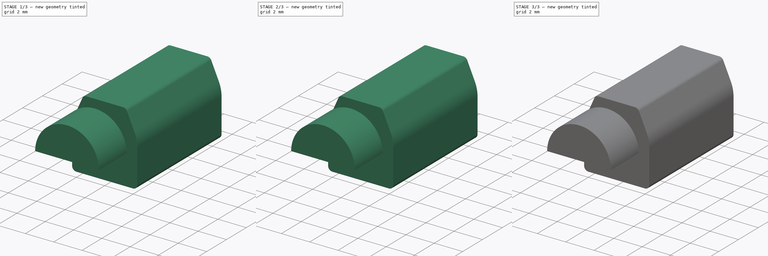
[diagram: build sequence overview — one tinted view per stage of 3, left to right]
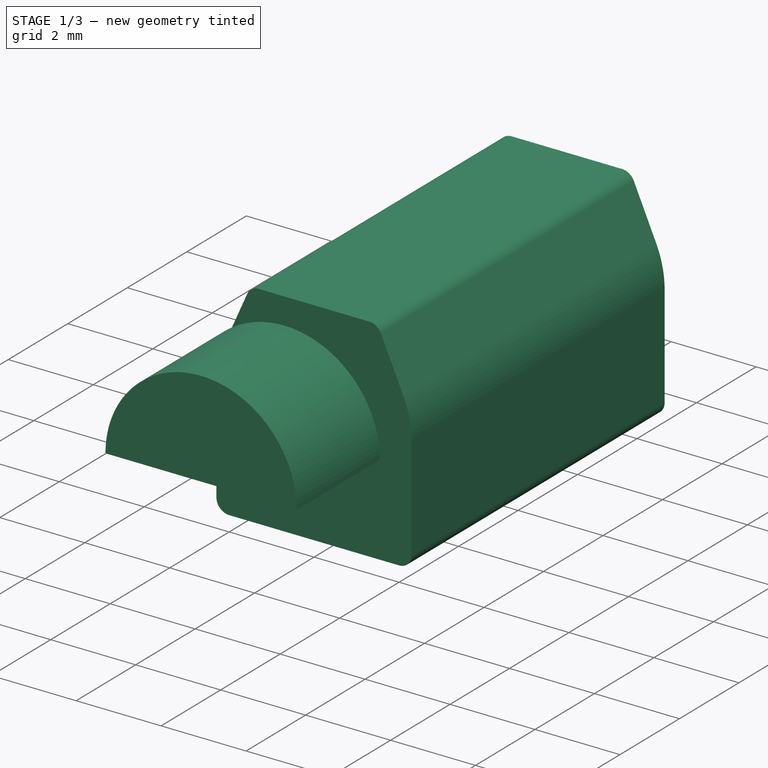
[diagram: stage 1 of 3 — iso view after this stage's code; geometry added in this stage tinted green]
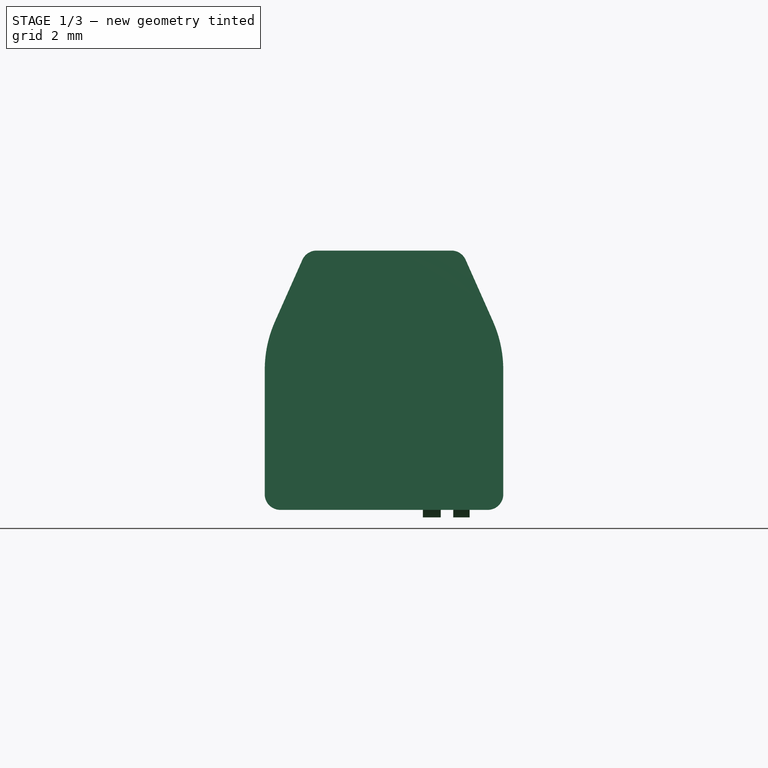
[diagram: stage 1 of 3 — front view after this stage's code; geometry added in this stage tinted green]
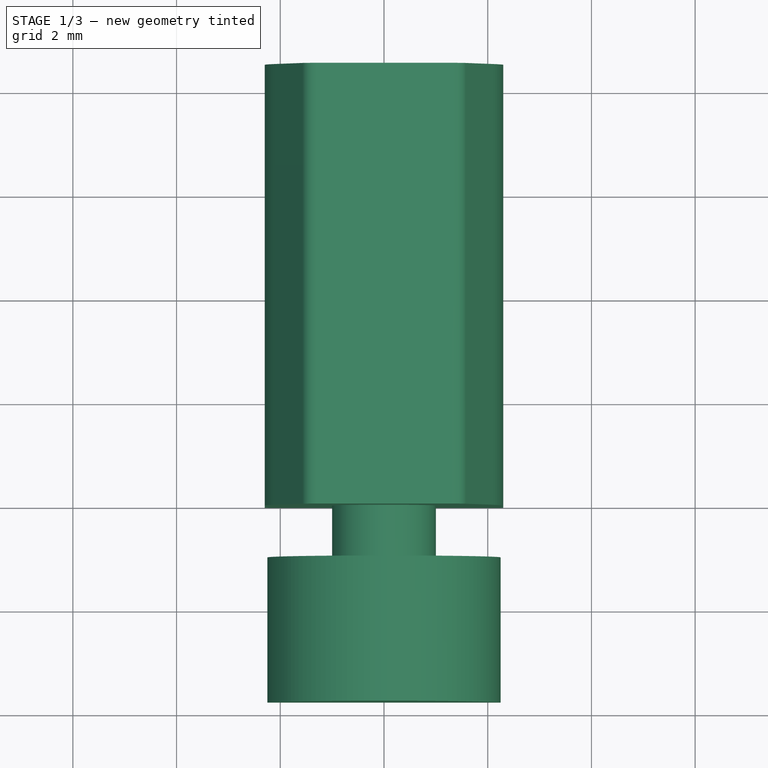
[diagram: stage 1 of 3 — top view after this stage's code; geometry added in this stage tinted green]
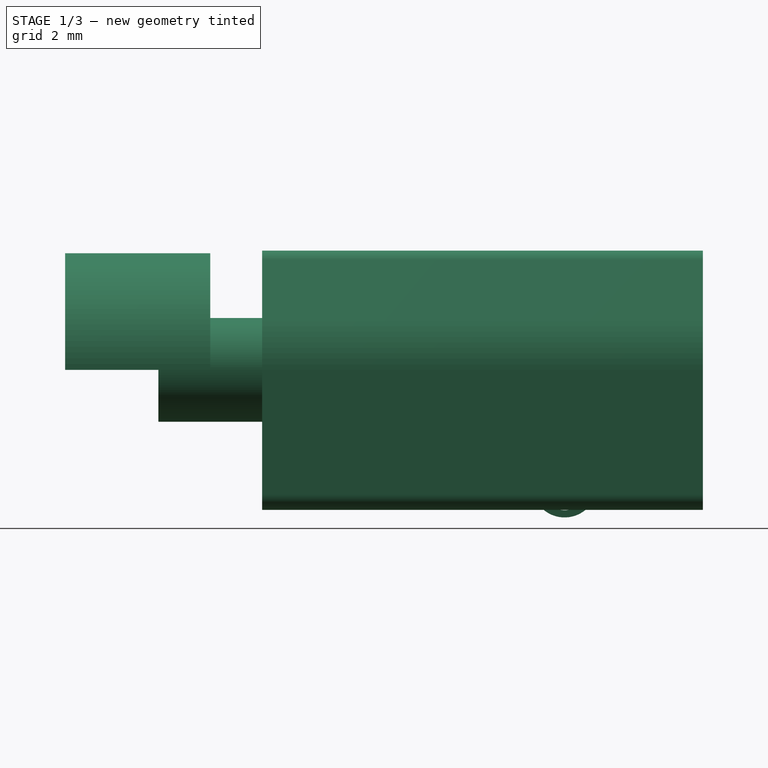
[diagram: stage 1 of 3 — right view after this stage's code; geometry added in this stage tinted green]
FCSTD DOCUMENT  (FreeCAD 0.19R22039 (Git))
Label: Z4TH7B2120042P_vibration_motor
License: All rights reserved
LicenseURL: http://en.wikipedia.org/wiki/All_rights_reserved
objects: Sketcher::SketchObject×6, PartDesign::Pad×4, Raytracing::RayFeature×4, Raytracing::LuxFeature×4, PartDesign::Body×3, Part::Feature×3, PartDesign::ShapeBinder×2, PartDesign::Pocket×2, App::Part×1, Part::Mirroring×1, Part::Compound×1, Raytracing::RayProject×1, Raytracing::LuxProject×1
note: 28 computed .brp shape members not serialized (recipe doc carries the construction recipe); baked Part::Feature solids carry a one-line shape summary decoded from their .brp

FEATURE [Sketcher::SketchObject] Sketch
  MapMode = 5
  Placement = pos=(0,0,0) rot=(1,0,0;1.5708rad)
  Support = -> [XZ_Plane001]
  sketch-geometry (12):
    g0: LineSegment StartX=-2.00001 StartY=5.33965e-11 StartZ=0 EndX=2 EndY=0 EndZ=0
    g1: ArcOfCircle CenterX=2 CenterY=0.3 CenterZ=0 NormalX=0 NormalY=0 NormalZ=1 AngleXU=0 Radius=0.3 StartAngle=4.71239 EndAngle=6.28319
    g2: LineSegment StartX=2.3 StartY=0.3 StartZ=0 EndX=2.3 EndY=2.7 EndZ=0
    g3: ArcOfCircle CenterX=8e-16 CenterY=2.7 CenterZ=0 NormalX=0 NormalY=0 NormalZ=1 AngleXU=0 Radius=2.3 StartAngle=0 EndAngle=0.418046
    g4: LineSegment StartX=2.10193 StartY=3.63374 StartZ=0 EndX=1.57417 EndY=4.82179 EndZ=0
    g5: ArcOfCircle CenterX=1.3 CenterY=4.7 CenterZ=0 NormalX=0 NormalY=0 NormalZ=1 AngleXU=0 Radius=0.3 StartAngle=0.418046 EndAngle=1.5708
    g6: LineSegment StartX=1.3 StartY=5 StartZ=0 EndX=-1.3 EndY=5 EndZ=0
    g7: ArcOfCircle CenterX=-1.3 CenterY=4.7 CenterZ=0 NormalX=0 NormalY=0 NormalZ=1 AngleXU=0 Radius=0.3 StartAngle=1.5708 EndAngle=2.72355
    g8: LineSegment StartX=-1.57417 StartY=4.82179 StartZ=0 EndX=-2.10193 EndY=3.63374 EndZ=0
    g9: ArcOfCircle CenterX=8e-16 CenterY=2.7 CenterZ=0 NormalX=0 NormalY=0 NormalZ=1 AngleXU=0 Radius=2.3 StartAngle=2.72355 EndAngle=3.14159
    g10: LineSegment StartX=-2.3 StartY=2.7 StartZ=0 EndX=-2.3 EndY=0.3 EndZ=0
    g11: ArcOfCircle CenterX=-2 CenterY=0.3 CenterZ=0 NormalX=0 NormalY=0 NormalZ=1 AngleXU=0 Radius=0.3 StartAngle=3.14159 EndAngle=4.71237
  constraints (36):
    c: PointOnObject(g0,g-1)
    c: PointOnObject(g0,g-1)
    c: Vertical(g2)
    c: Coincident(g11,g0)
    c: Coincident(g1,g0)
    c: DistanceY(g0,g5) = 5
    c: DistanceX(g10,g1) = 4.6
    c: Tangent(g5,g6) = -1.5708
    c: Tangent(g9,g10) = -1.5708
    c: Radius(g1) = 0.3
    c: Equal(g1,g11)
    c: Equal(g1,g7)
    c: Vertical(g10)
    c: Coincident(g2,g1)
    c: Coincident(g10,g11)
    c: DistanceX(g7,g5) = 2.6
    c: DistanceY(g-1,g3) = 2.7
    c: Coincident(g9,g3)
    c: Coincident(g8,g7)
    c: Coincident(g2,g3)
    c: Symmetric(g2,g9,g-2)
    c: Coincident(g4,g3)
    c: Coincident(g8,g9)
    c: Coincident(g7,g6)
    c: Coincident(g4,g5)
    c: Symmetric(g3,g8,g-2)
    c: Symmetric(g1,g11,g-2)
    c: Tangent(g4,g5) = -1.5708
    c: Tangent(g8,g9) = -1.5708
    c: Horizontal(g6)
    c: Symmetric(g7,g5,g-2)
    c: Tangent(g7,g8) = -1.5708
    c: Tangent(g6,g7) = -1.5708
    c: Tangent(g1,g2) = -1.5708
    c: Tangent(g0,g1) = -1.5708
    c: Tangent(g10,g11) = -1.5708
FEATURE [PartDesign::Pad] Pad
  Length = 8.5
  Length2 = 100
  Placement = pos=(0,0,0) rot=(1,0,0;1.5708rad)
  Profile = -> Sketch
  Reversed = true
  Type = 0
FEATURE [PartDesign::Body] Body001
  Group = -> [ShapeBinder,Sketch001,Pad001,Sketch002,Pad002]
  Origin = -> Origin002
  Tip = -> Pad002
FEATURE [Sketcher::SketchObject] Sketch003
  ExternalGeometry = -> [Pad]
  MapMode = 5
  Placement = pos=(0,0,2.66982e-11) rot=(1,0,0;3.14159rad)
  Support = -> [Pad]
  sketch-geometry (4):
    g0: LineSegment StartX=-1.9 StartY=-5 StartZ=0 EndX=1.9 EndY=-5 EndZ=0
    g1: LineSegment StartX=1.9 StartY=-5 StartZ=0 EndX=1.9 EndY=-8.1 EndZ=0
    g2: LineSegment StartX=1.9 StartY=-8.1 StartZ=0 EndX=-1.9 EndY=-8.1 EndZ=0
    g3: LineSegment StartX=-1.9 StartY=-8.1 StartZ=0 EndX=-1.9 EndY=-5 EndZ=0
  constraints (11):
    c: Coincident(g0,g1)
    c: Coincident(g1,g2)
    c: Coincident(g2,g3)
    c: Coincident(g3,g0)
    c: Horizontal(g2)
    c: Vertical(g1)
    c: Vertical(g3)
    c: Symmetric(g0,g0,g-2)
    c: DistanceX(g0,g-4) = 0.4
    c: DistanceY(g-6,g2) = 0.4
    c: DistanceY(g-6,g0) = 3.5
FEATURE [PartDesign::Pocket] Pocket
  BaseFeature = -> Pad
  Length = 1.5
  Length2 = 100
  Placement = pos=(0,0,0) rot=(1,0,0;1.5708rad)
  Profile = -> Sketch003
  Type = 0
FEATURE [Part::Feature] Pocket_cp
  Placement = pos=(0,0,0) rot=(1,0,0;1.5708rad)
  shape: bbox 4.6 x 8.5 x 5 mm, 19 faces (baked)
FEATURE [Part::Feature] Pad002_cp
  Placement = pos=(0,0,0) rot=(1,0,0;1.5708rad)
  shape: bbox 4.5 x 3.8 x 3.25 mm, 7 faces (baked)
FEATURE [Part::Feature] Pocket001_cp
  Placement = pos=(0,0,0) rot=(0.57735,0.57735,0.57735;2.0944rad)
  shape: bbox 0.9 x 2.366 x 1.407 mm, 15 faces (baked)
FEATURE [Part::Compound] Part_cp
  Links = -> [Pocket_cp,Pad002_cp,Pocket001_cp]
FEATURE [Raytracing::RayFeature] Part__Mirroring001_View
  Result = <blob: 35401 chars omitted>
  Source = -> Part__Mirroring001
  Transparency = 0
FEATURE [Raytracing::RayFeature] Body002_View
  Result = <blob: 34699 chars omitted>
  Source = -> Body002
  Transparency = 0
FEATURE [Raytracing::RayFeature] Body001_View
  Result = <blob: 15635 chars omitted>
  Source = -> Body001
  Transparency = 0
FEATURE [Raytracing::RayFeature] Body_View
  Result = <blob: 17780 chars omitted>
  Source = -> Body
  Transparency = 10
FEATURE [Raytracing::RayProject] PovProject
  Camera = // declares position and view direction\n\n// Generated by FreeCAD (http://www.freecadweb.org/)\n#declare cam_location =  <-16.9775,-10.8559,-1.28015>;\n#declare cam_look_at  = <1.14306,-0.762571,2.6228>;\n#declare cam_sky      = <0.153333,0.104685,-0.982614>;\n#declare cam_angle    = 45; \ncamera {\n  location  cam_location\n  look_at   cam_look_at\n  sky       cam_sky\n  angle     cam_angle \n  right x*1200/1080\n}
  Group = -> [Part__Mirroring001_View,Body002_View,Body001_View,Body_View]
  Template = <userpath>/Desktop/FreeCAD_0.19.22039_x64_LP_12.1.6_PY3QT5-WinVS2015/data/Mod/Raytracing/Templates/RadiosityNormal.pov
FEATURE [Raytracing::LuxFeature] Part__Mirroring001_View001
  Result = <blob: 24522 chars omitted>
  Source = -> Part__Mirroring001
  Transparency = 0
FEATURE [Raytracing::LuxFeature] Body002_View001
  Result = <blob: 24128 chars omitted>
  Source = -> Body002
  Transparency = 0
FEATURE [Raytracing::LuxFeature] Body001_View001
  Result = <blob: 10505 chars omitted>
  Source = -> Body001
  Transparency = 0
FEATURE [Raytracing::LuxFeature] Body_View001
  Result = <blob: 10223 chars omitted>
  Source = -> Body
  Transparency = 10
FEATURE [Raytracing::LuxProject] LuxProject
  Camera = # declares position and view direction\n# Generated by FreeCAD (http://www.freecadweb.org/)\nLookAt -16.9775 -1.28015 -10.8559 1.14306 2.6228 -0.762571 0.153333 -0.982614 0.104685
  Group = -> [Part__Mirroring001_View001,Body002_View001,Body001_View001,Body_View001]
  Template = <userpath>/Desktop/FreeCAD_0.19.22039_x64_LP_12.1.6_PY3QT5-WinVS2015/data/Mod/Raytracing/Templates/LuxClassic.lxs
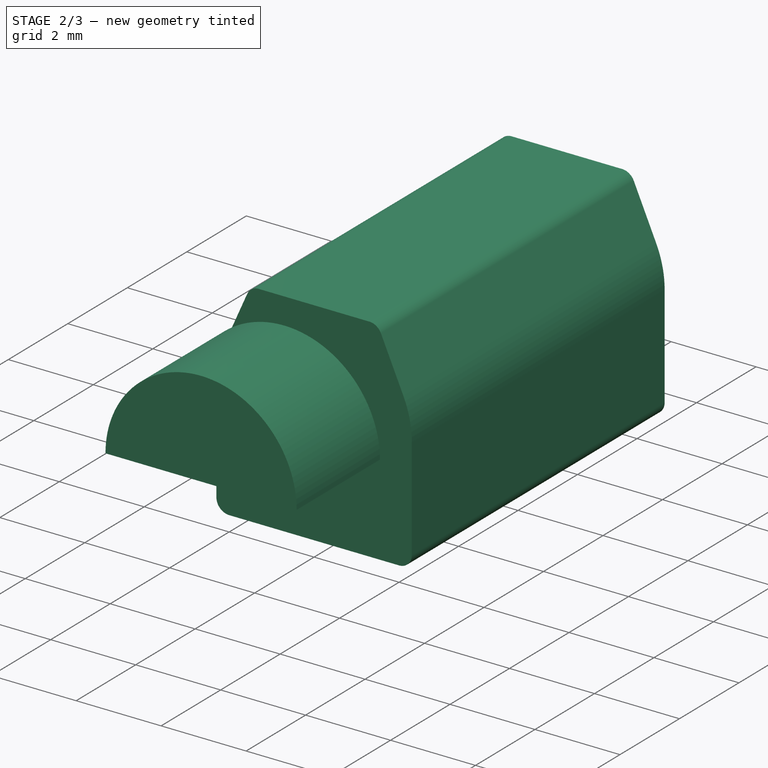
[diagram: stage 2 of 3 — iso view after this stage's code; geometry added in this stage tinted green]
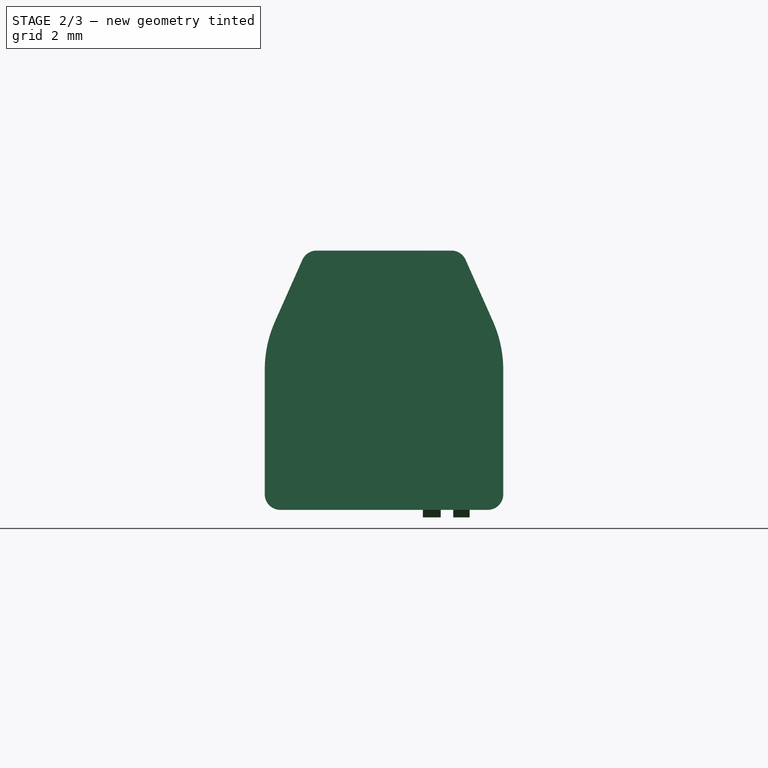
[diagram: stage 2 of 3 — front view after this stage's code; geometry added in this stage tinted green]
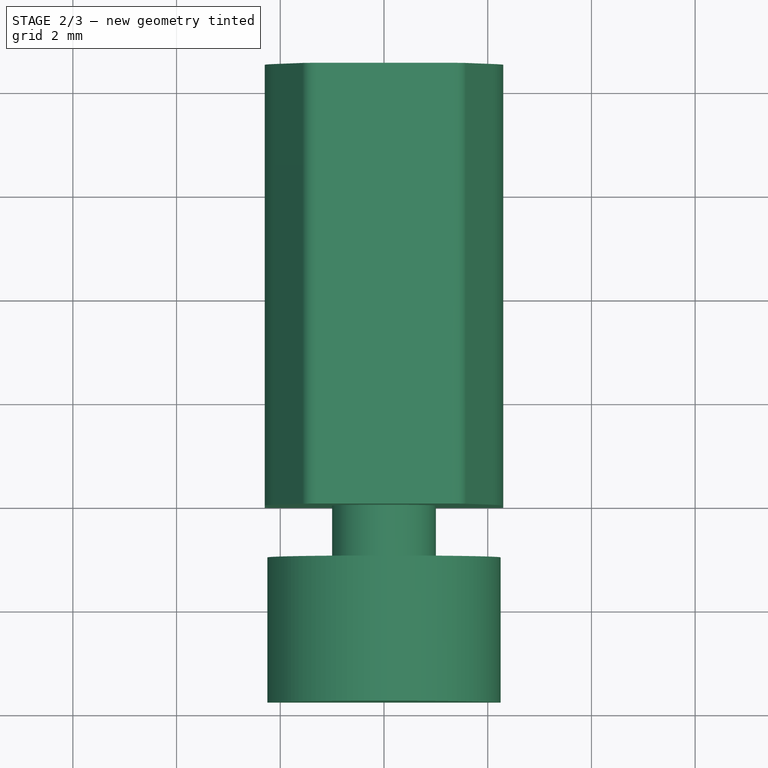
[diagram: stage 2 of 3 — top view after this stage's code; geometry added in this stage tinted green]
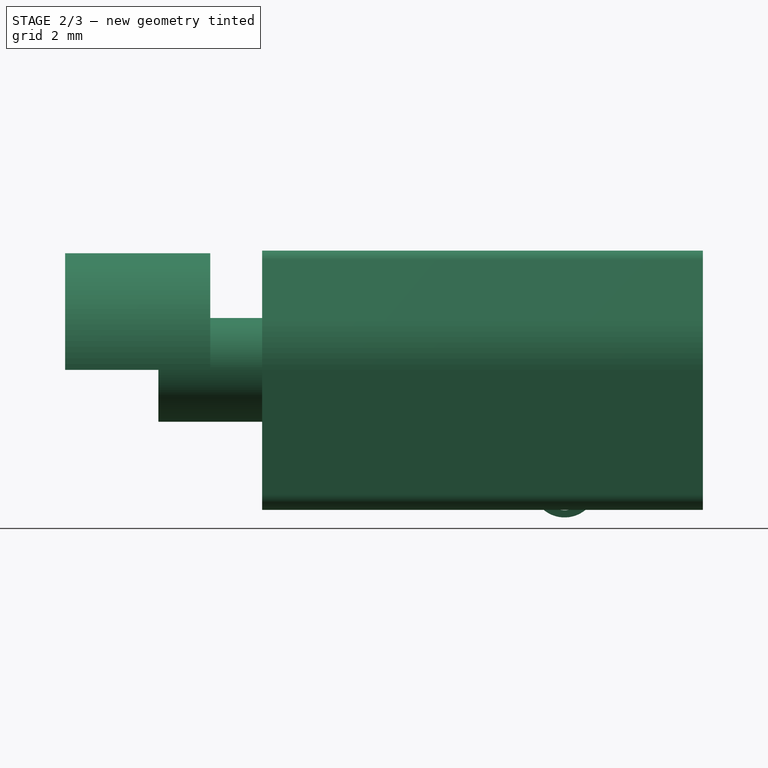
[diagram: stage 2 of 3 — right view after this stage's code; geometry added in this stage tinted green]
FEATURE [PartDesign::Body] Body
  Group = -> [Sketch,Pad,Sketch003,Pocket]
  Origin = -> Origin001
  Tip = -> Pocket
FEATURE [PartDesign::ShapeBinder] ShapeBinder001
  Support = -> [Pocket]
  TraceSupport = false
FEATURE [Sketcher::SketchObject] Sketch004
  AttachmentOffset = pos=(0,0,1.2) rot=(0,0,1;0rad)
  ExternalGeometry = -> [ShapeBinder001]
  MapMode = 5
  Placement = pos=(1.2,-3e-16,3e-16) rot=(0.57735,0.57735,0.57735;2.0944rad)
  Support = -> [YZ_Plane003]
  sketch-geometry (6):
    g0: ArcOfCircle CenterX=5.83306 CenterY=0.483702 CenterZ=0 NormalX=0 NormalY=0 NormalZ=1 AngleXU=0 Radius=0.629491 StartAngle=3.46202 EndAngle=5.96502
    g1: ArcOfCircle CenterX=7.58986 CenterY=-0.094899 CenterZ=0 NormalX=0 NormalY=0 NormalZ=1 AngleXU=0 Radius=1.22013 StartAngle=1.56107 EndAngle=2.82343
    g2: ArcOfCircle CenterX=7.52387 CenterY=-0.0409918 CenterZ=0 NormalX=0 NormalY=0 NormalZ=1 AngleXU=0 Radius=1.30238 StartAngle=1.52312 EndAngle=2.85653
    g3: ArcOfCircle CenterX=5.83 CenterY=0.45538 CenterZ=0 NormalX=0 NormalY=0 NormalZ=1 AngleXU=0 Radius=0.462716 StartAngle=3.37404 EndAngle=5.99813
    g4: LineSegment StartX=5.23561 StartY=0.285428 StartZ=0 EndX=5.37973 EndY=0.348788 EndZ=0
    g5: LineSegment StartX=7.58593 StartY=1.25991 StartZ=0 EndX=7.60172 EndY=1.12517 EndZ=0
  constraints (7):
    c: Tangent(g0,g1) = 1.5708
    c: Tangent(g3,g2) = 1.5708
    c: Coincident(g4,g0)
    c: Coincident(g4,g3)
    c: Coincident(g5,g2)
    c: Coincident(g5,g1)
    c: DistanceX(g-1,g3) = 5.83
FEATURE [PartDesign::Pad] Pad003
  Length = 0.9
  Length2 = 100
  Midplane = true
  Placement = pos=(0,0,0) rot=(0.57735,0.57735,0.57735;2.0944rad)
  Profile = -> Sketch004
  Type = 0
FEATURE [Sketcher::SketchObject] Sketch005
  ExternalGeometry = -> [Pad003]
  MapMode = 5
  Support = -> [XY_Plane003]
  sketch-geometry (7):
    g0: LineSegment StartX=1.335 StartY=5.3518 StartZ=0 EndX=1.335 EndY=6.24534 EndZ=0
    g1: ArcOfCircle CenterX=1.215 CenterY=6.24534 CenterZ=0 NormalX=0 NormalY=0 NormalZ=1 AngleXU=0 Radius=0.12 StartAngle=1.1e-15 EndAngle=3.14159
    g2: LineSegment StartX=1.095 StartY=6.24534 StartZ=0 EndX=1.095 EndY=5.35561 EndZ=0
    g3: GeomPoint X=1.2 Y=5.23561 Z=0
    g4: ArcOfCircle CenterX=1.455 CenterY=5.3518 CenterZ=0 NormalX=0 NormalY=0 NormalZ=1 AngleXU=0 Radius=0.12 StartAngle=3.14159 EndAngle=4.45971
    g5: ArcOfCircle CenterX=0.975 CenterY=5.35561 CenterZ=0 NormalX=0 NormalY=0 NormalZ=1 AngleXU=0 Radius=0.12 StartAngle=4.71239 EndAngle=6.28319
    g6: LineSegment StartX=0.975 StartY=5.23561 StartZ=0 EndX=1.425 EndY=5.23561 EndZ=0
  constraints (17):
    c: Vertical(g0)
    c: Tangent(g0,g1) = -1.5708
    c: Tangent(g1,g2) = -1.5708
    c: Vertical(g2)
    c: Symmetric(g-3,g-3,g3)
    c: Coincident(g4,g0)
    c: Coincident(g5,g2)
    c: Coincident(g6,g5)
    c: Coincident(g6,g4)
    c: Tangent(g6,g5)
    c: Symmetric(g5,g4,g3)
    c: Symmetric(g-3,g3,g5)
    c: Radius(g1) = 0.12
    c: Equal(g1,g5)
    c: Equal(g1,g4)
    c: DistanceY(g4,g0) = 0
    c: DistanceY(g5,g2) = 0
FEATURE [PartDesign::Pocket] Pocket001
  BaseFeature = -> Pad003
  Length = 5
  Length2 = 100
  Midplane = true
  Placement = pos=(0,0,0) rot=(0.57735,0.57735,0.57735;2.0944rad)
  Profile = -> Sketch005
  Type = 0
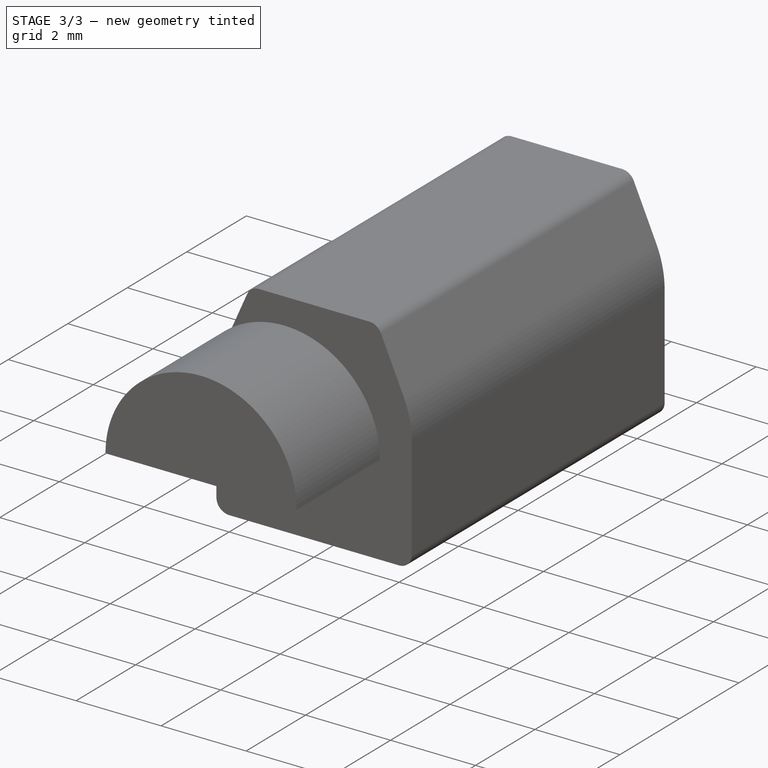
[diagram: stage 3 of 3 — iso view after this stage's code; geometry added in this stage tinted green]
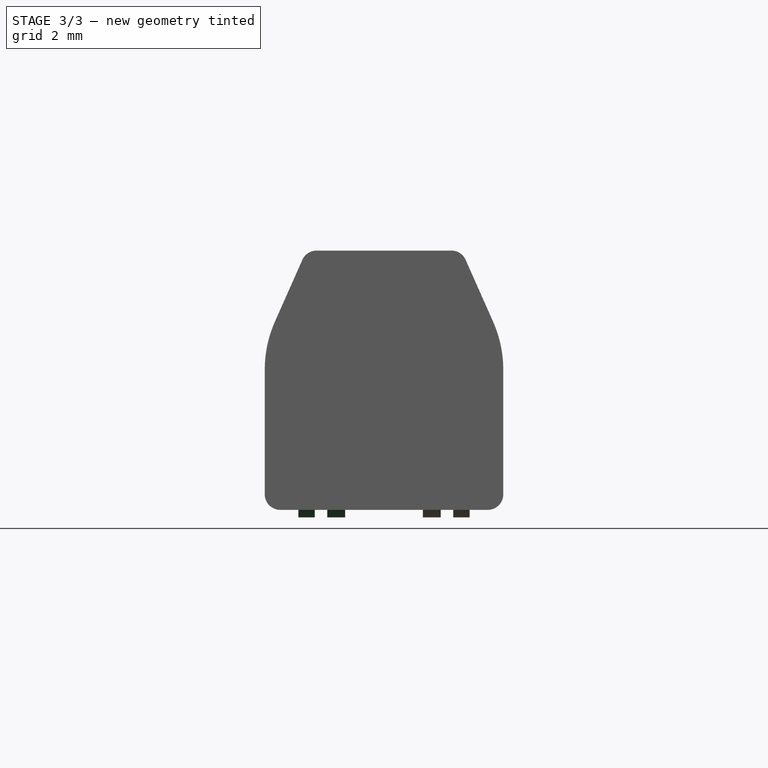
[diagram: stage 3 of 3 — front view after this stage's code; geometry added in this stage tinted green]
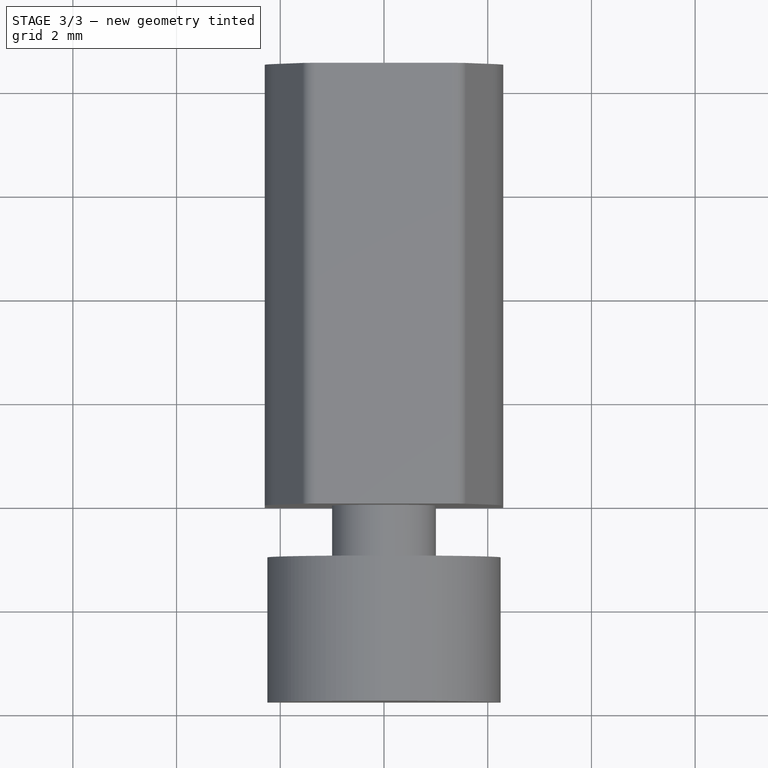
[diagram: stage 3 of 3 — top view after this stage's code; geometry added in this stage tinted green]
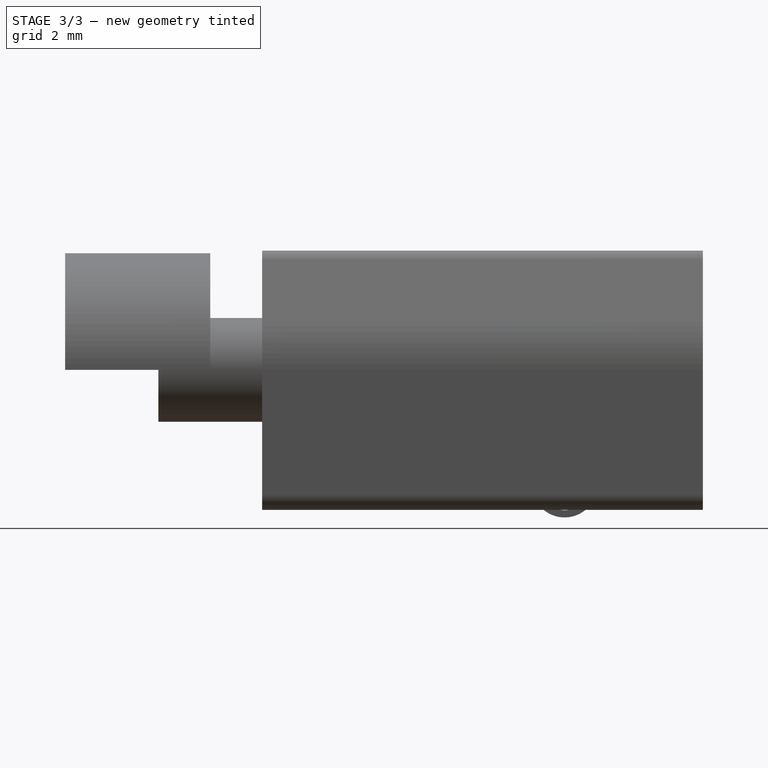
[diagram: stage 3 of 3 — right view after this stage's code; geometry added in this stage tinted green]
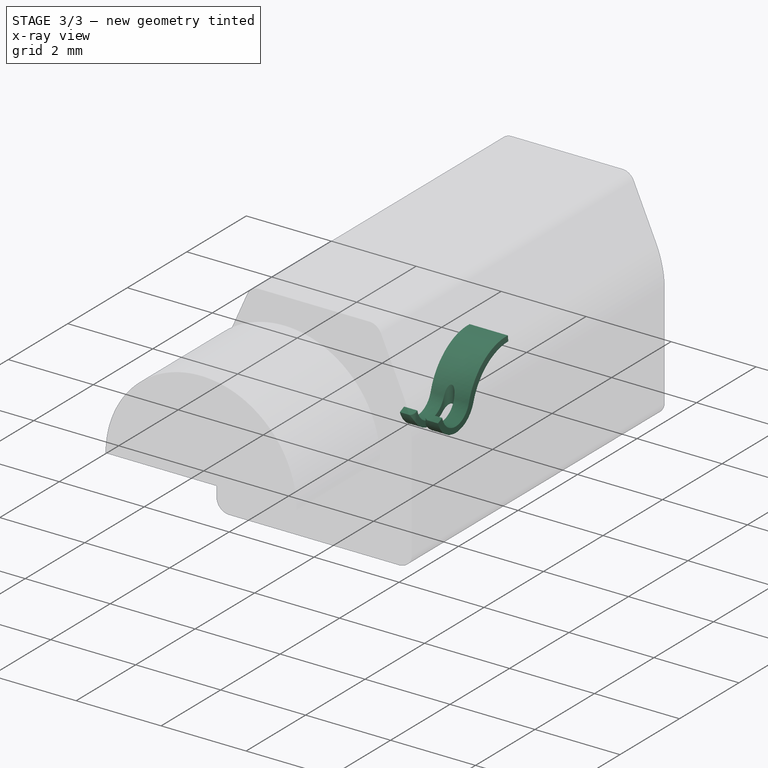
[diagram: stage 3 of 3 — x-ray composite at the iso view; earlier geometry ghosted, this stage's added geometry solid]
FEATURE [PartDesign::ShapeBinder] ShapeBinder
  Placement = pos=(0,8.5,-6e-15) rot=(0,0,1;0rad)
  Support = -> [Pad]
  TraceSupport = false
FEATURE [Sketcher::SketchObject] Sketch001
  ExternalGeometry = -> [ShapeBinder]
  MapMode = 5
  Placement = pos=(0,0,0) rot=(1,0,0;1.5708rad)
  Support = -> [XZ_Plane002]
  sketch-geometry (1):
    g0: Circle CenterX=0 CenterY=2.7 CenterZ=0 NormalX=0 NormalY=0 NormalZ=1 AngleXU=0 Radius=1
  constraints (3):
    c: PointOnObject(g0,g-2)
    c: DistanceY(g-1,g0) = 2.7
    c: Diameter(g0) = 2
FEATURE [PartDesign::Pad] Pad001
  Length = 2
  Length2 = 100
  Placement = pos=(0,0,0) rot=(1,0,0;1.5708rad)
  Profile = -> Sketch001
  Type = 0
FEATURE [Sketcher::SketchObject] Sketch002
  MapMode = 5
  Placement = pos=(0,-2,9e-16) rot=(1,0,0;1.5708rad)
  Support = -> [Pad001]
  sketch-geometry (2):
    g0: ArcOfCircle CenterX=0 CenterY=2.7 CenterZ=0 NormalX=0 NormalY=0 NormalZ=1 AngleXU=0 Radius=2.25 StartAngle=0 EndAngle=3.14159
    g1: LineSegment StartX=-2.25 StartY=2.7 StartZ=0 EndX=2.25 EndY=2.7 EndZ=0
  constraints (7):
    c: PointOnObject(g0,g-2)
    c: Coincident(g1,g0)
    c: Coincident(g1,g0)
    c: Horizontal(g1)
    c: PointOnObject(g0,g1)
    c: DistanceY(g-1,g0) = 2.7
    c: Radius(g0) = 2.25
FEATURE [PartDesign::Pad] Pad002
  BaseFeature = -> Pad001
  Length = 1.8
  Length2 = 1
  Placement = pos=(0,0,0) rot=(1,0,0;1.5708rad)
  Profile = -> Sketch002
  Type = 4
FEATURE [PartDesign::Body] Body002
  Group = -> [Sketch004,ShapeBinder001,Pad003,Sketch005,Pocket001]
  Origin = -> Origin003
  Tip = -> Pocket001
FEATURE [App::Part] Part
  Group = -> [Body,Body001,Body002]
  Origin = -> Origin
FEATURE [Part::Mirroring] Part__Mirroring001  label="Pocket001 (Mirror #2)"
  Base = (0,0,0)
  Normal = (1,0,0)
  Source = -> Pocket001
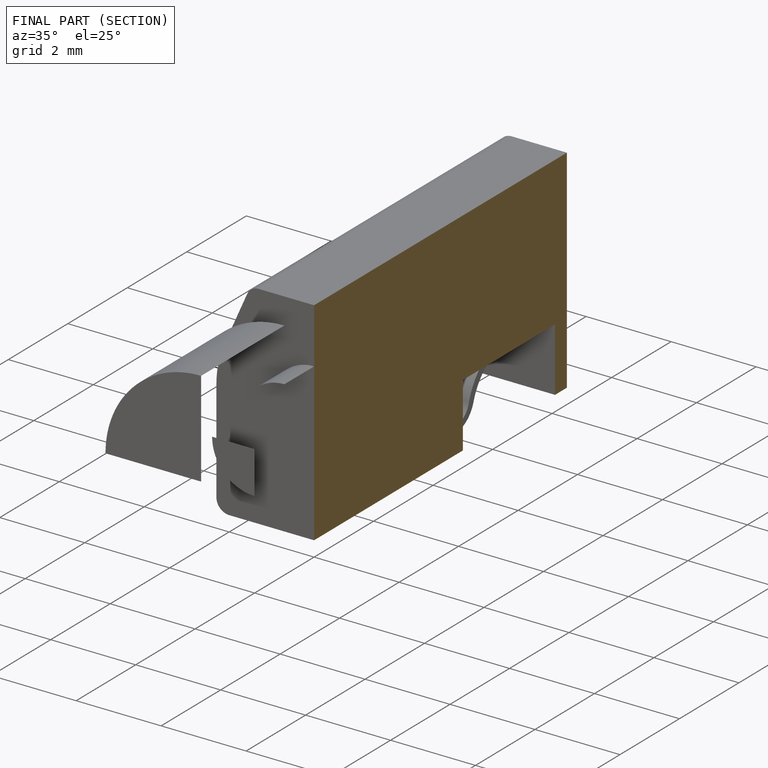
[diagram: finished part — half-section view (interior)]
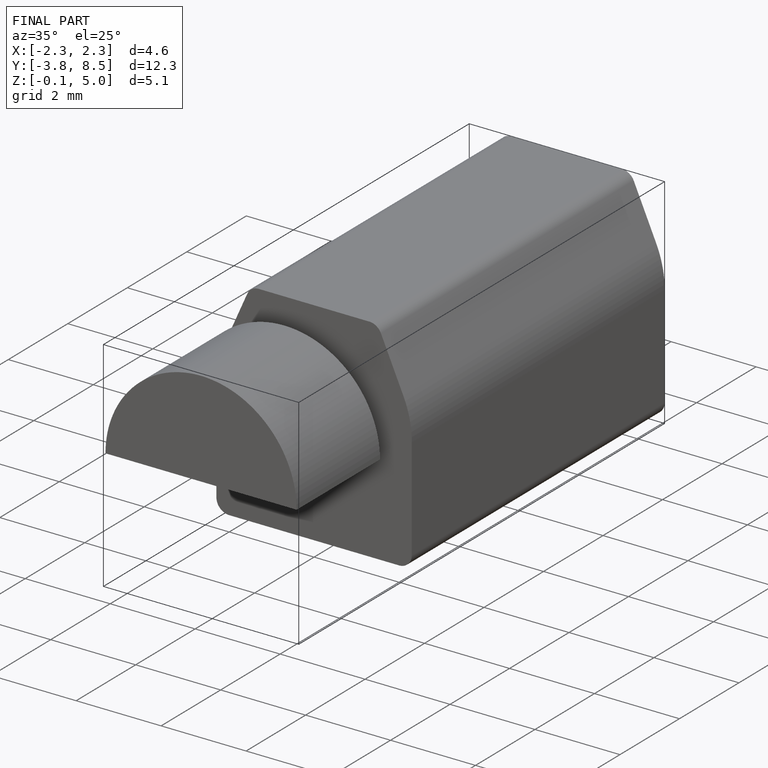
[diagram: finished part — iso view with bounding-box wireframe]
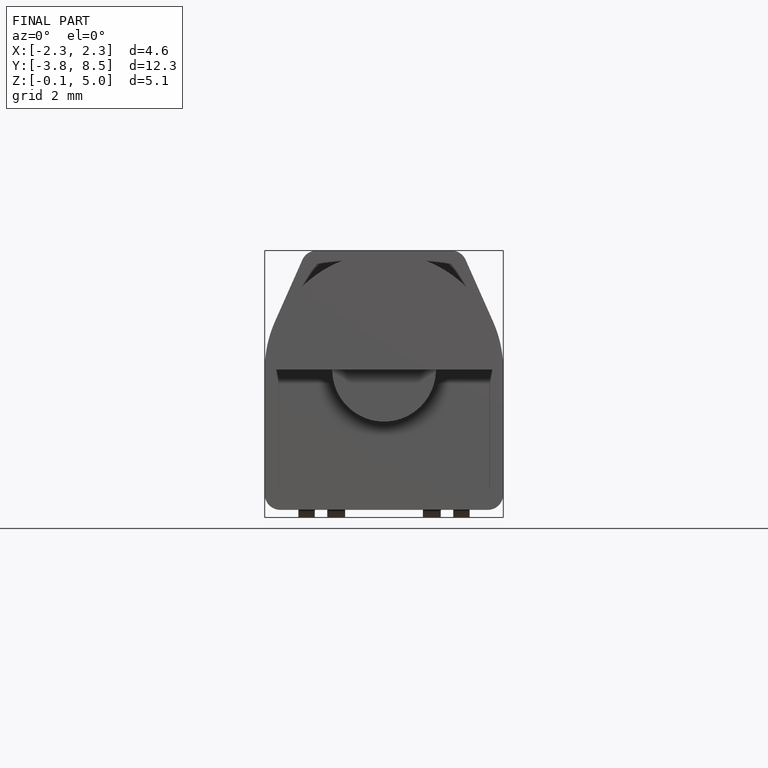
[diagram: finished part — front view with bounding-box wireframe]
